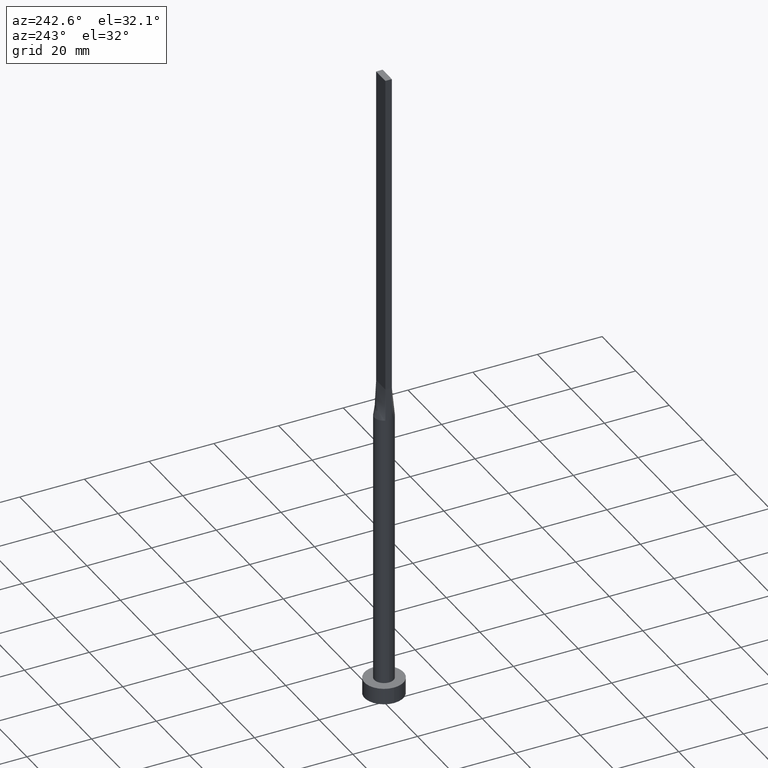
[diagram: clean part render]
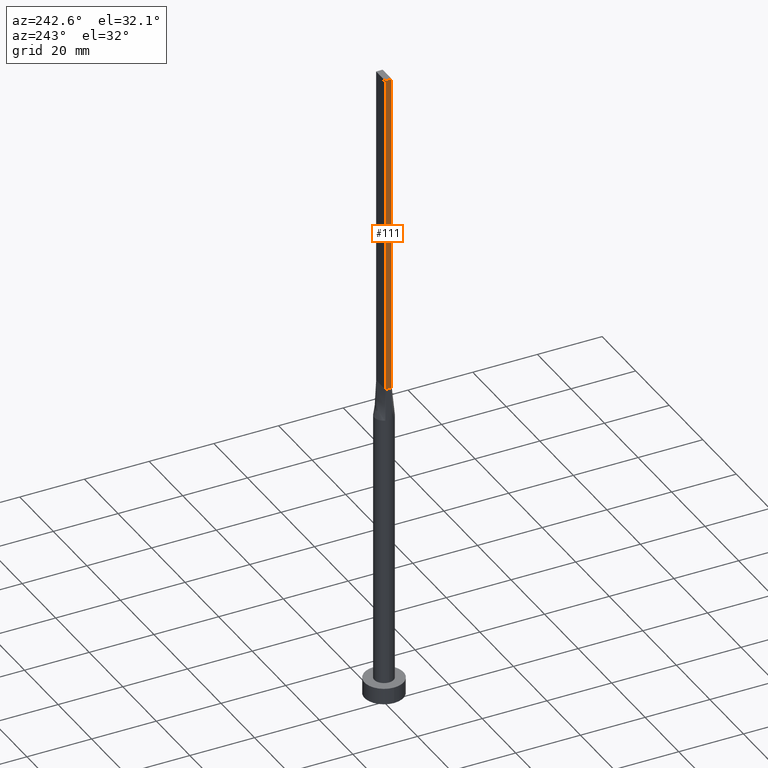
[diagram: same view with one face highlighted and labeled with its STEP entity id]
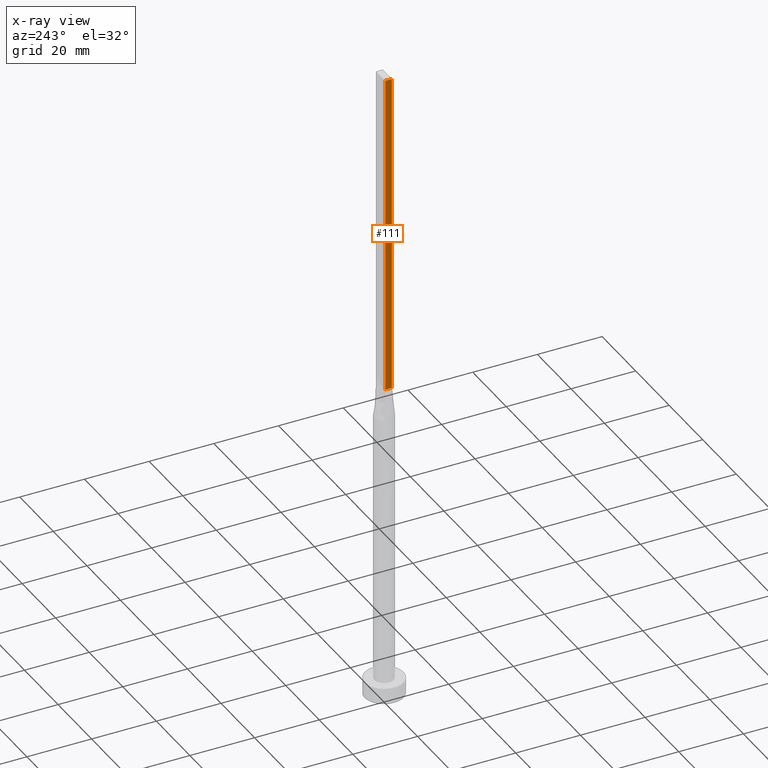
[diagram: x-ray of the same camera — body ghosted, the highlighted face saturated]
A machine part, auxiliary view. The second image highlights one B-rep face of the part: STEP entity #111.
The next image is the same camera in x-ray: the body ghosted, the highlighted face saturated — about 0% of this face is hidden behind the body in this view.
In plain terms, the highlighted planar face has unit normal (1, -0, 0).
Its self-contained STEP definition (entity closure, byte-faithful):
#6 = CARTESIAN_POINT ( 'NONE',  ( -2.750000000000000000, -0.9999999999999993339, 200.0000000000000000 ) ) ;
#31 = EDGE_LOOP ( 'NONE', ( #454, #387, #487, #539 ) ) ;
#54 = CARTESIAN_POINT ( 'NONE',  ( -2.749999999999999556, 1.000000000000000000, 100.0000000000000000 ) ) ;
#89 = CARTESIAN_POINT ( 'NONE',  ( -2.749999999999999556, 1.000000000000000000, 200.0000000000000000 ) ) ;
#103 = CARTESIAN_POINT ( 'NONE',  ( -2.749999999999999556, 1.000000000000000000, 200.0000000000000000 ) ) ;
#111 = ADVANCED_FACE ( 'NONE', ( #581 ), #260, .F. ) ;
#124 = VECTOR ( 'NONE', #279, 1000.000000000000000 ) ;
#131 = DIRECTION ( 'NONE',  ( 2.168404344971010101E-16, 1.000000000000000000, 0.000000000000000000 ) ) ;
#141 = VECTOR ( 'NONE', #219, 1000.000000000000000 ) ;
#149 = LINE ( 'NONE', #103, #124 ) ;
#170 = DIRECTION ( 'NONE',  ( 1.000000000000000000, -2.168404344971010101E-16, 0.000000000000000000 ) ) ;
#176 = DIRECTION ( 'NONE',  ( -0.000000000000000000, -0.000000000000000000, -1.000000000000000000 ) ) ;
#215 = CARTESIAN_POINT ( 'NONE',  ( -2.749999999999999556, 1.000000000000000000, 200.0000000000000000 ) ) ;
#219 = DIRECTION ( 'NONE',  ( -2.168404344971009854E-16, -1.000000000000000000, 0.000000000000000000 ) ) ;
#226 = EDGE_CURVE ( 'NONE', #480, #571, #149, .T. ) ;
#260 = PLANE ( 'NONE',  #345 ) ;
#279 = DIRECTION ( 'NONE',  ( -0.000000000000000000, -0.000000000000000000, -1.000000000000000000 ) ) ;
#292 = VERTEX_POINT ( 'NONE', #422 ) ;
#345 = AXIS2_PLACEMENT_3D ( 'NONE', #215, #170, #131 ) ;
#350 = CARTESIAN_POINT ( 'NONE',  ( -2.750000000000000000, -0.9999999999999993339, 100.0000000000000000 ) ) ;
#358 = EDGE_CURVE ( 'NONE', #571, #473, #497, .T. ) ;
#387 = ORIENTED_EDGE ( 'NONE', *, *, #522, .F. ) ;
#397 = CARTESIAN_POINT ( 'NONE',  ( -2.749999999999999556, 1.000000000000000000, 200.0000000000000000 ) ) ;
#401 = LINE ( 'NONE', #6, #501 ) ;
#411 = EDGE_CURVE ( 'NONE', #480, #292, #495, .T. ) ;
#420 = VECTOR ( 'NONE', #436, 1000.000000000000000 ) ;
#422 = CARTESIAN_POINT ( 'NONE',  ( -2.750000000000000000, -0.9999999999999993339, 200.0000000000000000 ) ) ;
#436 = DIRECTION ( 'NONE',  ( -2.168404344971009854E-16, -1.000000000000000000, 0.000000000000000000 ) ) ;
#454 = ORIENTED_EDGE ( 'NONE', *, *, #358, .T. ) ;
#473 = VERTEX_POINT ( 'NONE', #350 ) ;
#480 = VERTEX_POINT ( 'NONE', #89 ) ;
#487 = ORIENTED_EDGE ( 'NONE', *, *, #411, .F. ) ;
#495 = LINE ( 'NONE', #397, #420 ) ;
#497 = LINE ( 'NONE', #54, #141 ) ;
#501 = VECTOR ( 'NONE', #176, 1000.000000000000000 ) ;
#513 = CARTESIAN_POINT ( 'NONE',  ( -2.749999999999999556, 1.000000000000000000, 100.0000000000000000 ) ) ;
#522 = EDGE_CURVE ( 'NONE', #292, #473, #401, .T. ) ;
#539 = ORIENTED_EDGE ( 'NONE', *, *, #226, .T. ) ;
#571 = VERTEX_POINT ( 'NONE', #513 ) ;
#581 = FACE_OUTER_BOUND ( 'NONE', #31, .T. ) ;